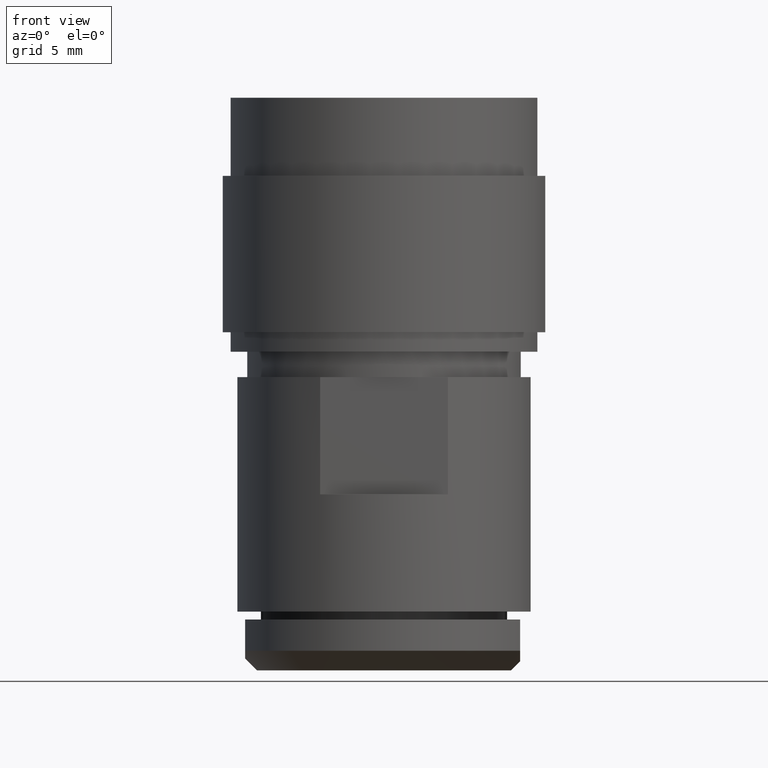
[diagram: clean part render]
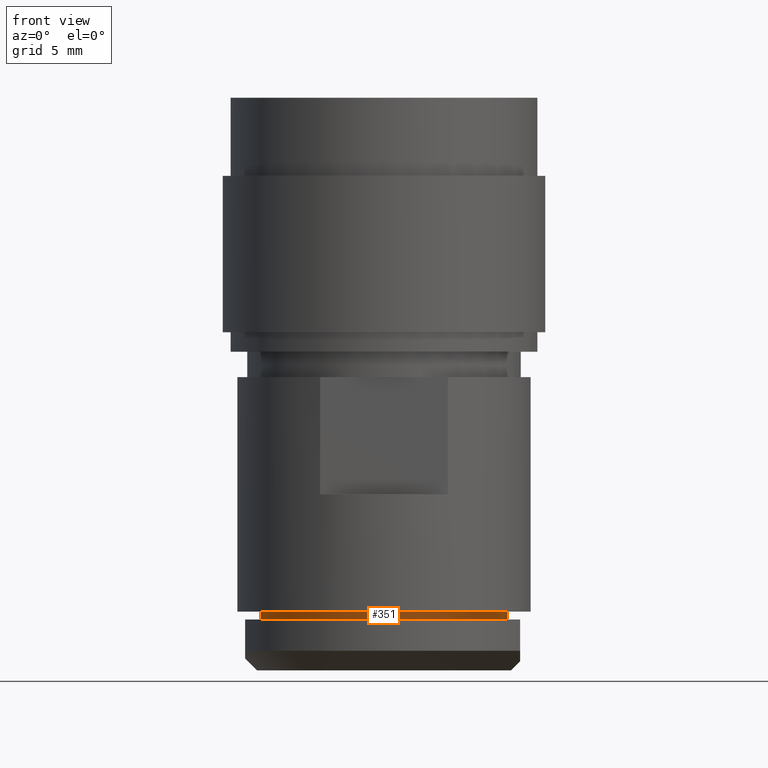
[diagram: same view with one face highlighted and labeled with its STEP entity id]
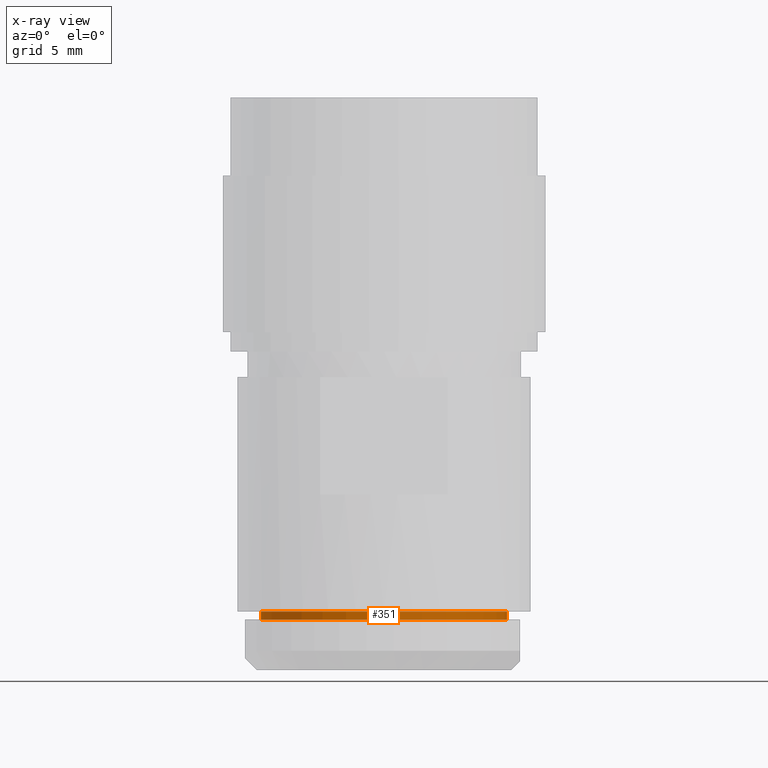
[diagram: x-ray of the same camera — body ghosted, the highlighted face saturated]
A machine part, front view. The second image highlights one B-rep face of the part: STEP entity #351.
The next image is the same camera in x-ray: the body ghosted, the highlighted face saturated — about 0% of this face is hidden behind the body in this view.
In plain terms, the highlighted cylindrical surface (partial cylindrical patch) has radius 7.9979 mm, axis along (-0, -0, -1).
Its self-contained STEP definition (entity closure, byte-faithful):
#77 = VERTEX_POINT ( 'NONE', #2630 ) ;
#100 = VERTEX_POINT ( 'NONE', #2607 ) ;
#127 = VERTEX_POINT ( 'NONE', #2580 ) ;
#195 = VERTEX_POINT ( 'NONE', #2512 ) ;
#252 = ORIENTED_EDGE ( 'NONE', *, *, #1031, .F. ) ;
#253 = ORIENTED_EDGE ( 'NONE', *, *, #1119, .F. ) ;
#254 = ORIENTED_EDGE ( 'NONE', *, *, #1033, .T. ) ;
#255 = ORIENTED_EDGE ( 'NONE', *, *, #1098, .T. ) ;
#351 = ADVANCED_FACE ( 'NONE', ( #1963 ), #1965, .T. ) ;
#580 = CIRCLE ( 'NONE', #807, 0.3148784994718704100 ) ;
#606 = CIRCLE ( 'NONE', #817, 0.3148784994718704100 ) ;
#807 = AXIS2_PLACEMENT_3D ( 'NONE', #3082, #3081, #3079 ) ;
#817 = AXIS2_PLACEMENT_3D ( 'NONE', #2999, #3000, #3001 ) ;
#897 = AXIS2_PLACEMENT_3D ( 'NONE', #2260, #2261, #2264 ) ;
#1031 = EDGE_CURVE ( 'NONE', #195, #127, #1858, .T. ) ;
#1033 = EDGE_CURVE ( 'NONE', #77, #100, #1853, .T. ) ;
#1098 = EDGE_CURVE ( 'NONE', #100, #127, #606, .T. ) ;
#1119 = EDGE_CURVE ( 'NONE', #77, #195, #580, .T. ) ;
#1706 = EDGE_LOOP ( 'NONE', ( #252, #253, #254, #255 ) ) ;
#1851 = VECTOR ( 'NONE', #2777, 39.37007874015748100 ) ;
#1853 = LINE ( 'NONE', #2782, #1851 ) ;
#1854 = VECTOR ( 'NONE', #2776, 39.37007874015748100 ) ;
#1858 = LINE ( 'NONE', #2778, #1854 ) ;
#1963 = FACE_OUTER_BOUND ( 'NONE', #1706, .T. ) ;
#1965 = CYLINDRICAL_SURFACE ( 'NONE', #897, 0.3148784994718704100 ) ;
#2260 = CARTESIAN_POINT ( 'NONE',  ( 0.0000000000000000000, 0.0000000000000000000, 0.1499999999999999900 ) ) ;
#2261 = DIRECTION ( 'NONE',  ( -0.0000000000000000000, -0.0000000000000000000, -1.000000000000000000 ) ) ;
#2264 = DIRECTION ( 'NONE',  ( -1.000000000000000000, 0.0000000000000000000, 0.0000000000000000000 ) ) ;
#2512 = CARTESIAN_POINT ( 'NONE',  ( 0.3148784994718704100, 3.856149464985476900E-017, 0.1499999999999999900 ) ) ;
#2580 = CARTESIAN_POINT ( 'NONE',  ( 0.3148784994718704100, 3.856149464985476900E-017, 0.1300000000000000000 ) ) ;
#2607 = CARTESIAN_POINT ( 'NONE',  ( -0.3148784994718704100, 0.0000000000000000000, 0.1300000000000000000 ) ) ;
#2630 = CARTESIAN_POINT ( 'NONE',  ( -0.3148784994718704100, 0.0000000000000000000, 0.1499999999999999900 ) ) ;
#2776 = DIRECTION ( 'NONE',  ( -0.0000000000000000000, -0.0000000000000000000, -1.000000000000000000 ) ) ;
#2777 = DIRECTION ( 'NONE',  ( -0.0000000000000000000, -0.0000000000000000000, -1.000000000000000000 ) ) ;
#2778 = CARTESIAN_POINT ( 'NONE',  ( 0.3148784994718704100, 3.856149464985476900E-017, 0.1499999999999999900 ) ) ;
#2782 = CARTESIAN_POINT ( 'NONE',  ( -0.3148784994718704100, 0.0000000000000000000, 0.1499999999999999900 ) ) ;
#2999 = CARTESIAN_POINT ( 'NONE',  ( 0.0000000000000000000, 0.0000000000000000000, 0.1300000000000000000 ) ) ;
#3000 = DIRECTION ( 'NONE',  ( 0.0000000000000000000, 0.0000000000000000000, 1.000000000000000000 ) ) ;
#3001 = DIRECTION ( 'NONE',  ( 1.000000000000000000, 0.0000000000000000000, 0.0000000000000000000 ) ) ;
#3079 = DIRECTION ( 'NONE',  ( 1.000000000000000000, 0.0000000000000000000, 0.0000000000000000000 ) ) ;
#3081 = DIRECTION ( 'NONE',  ( 0.0000000000000000000, 0.0000000000000000000, 1.000000000000000000 ) ) ;
#3082 = CARTESIAN_POINT ( 'NONE',  ( 0.0000000000000000000, 0.0000000000000000000, 0.1499999999999999900 ) ) ;